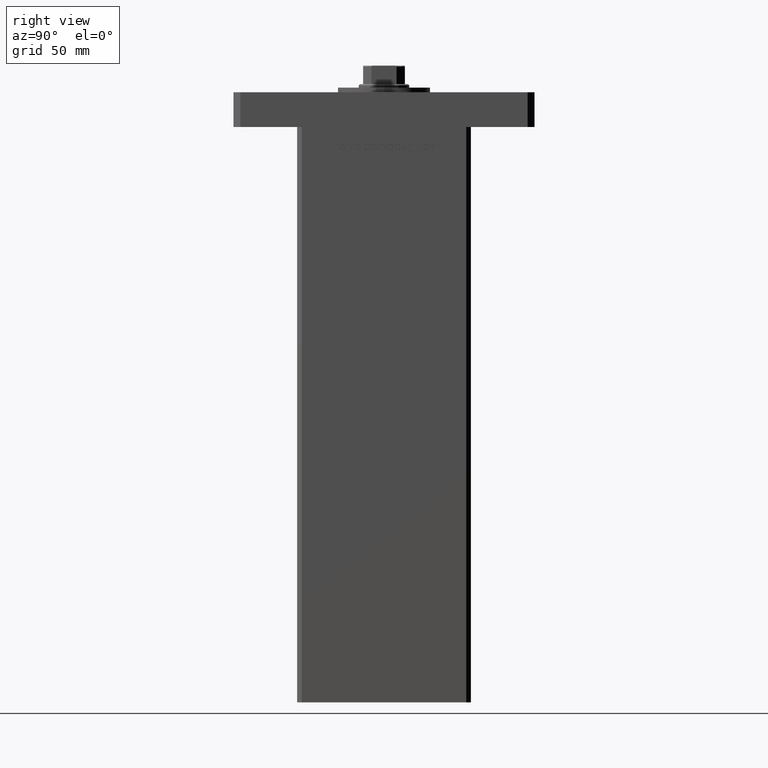
[diagram: clean part render]
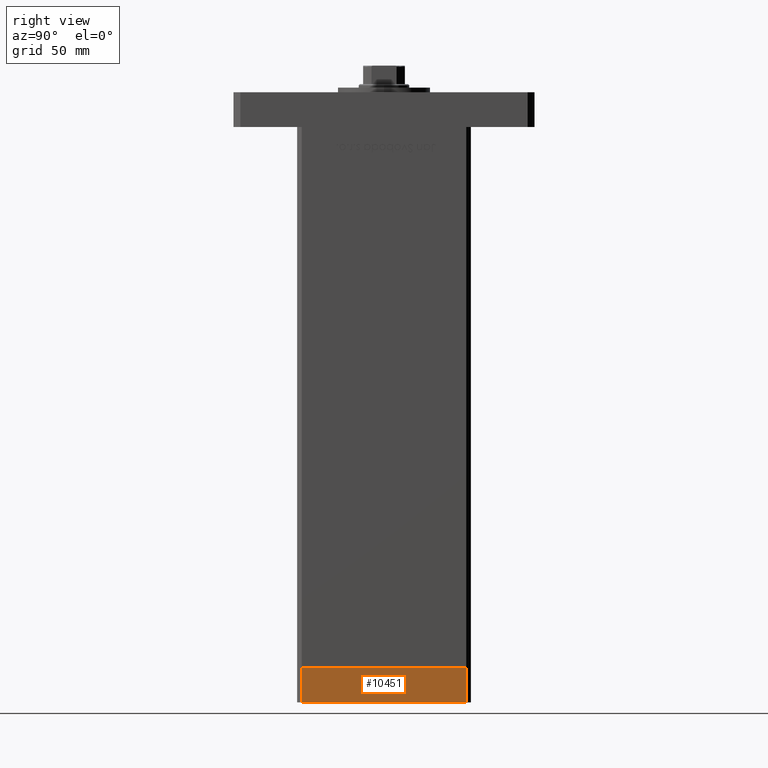
[diagram: same view with one face highlighted and labeled with its STEP entity id]
A machine part, right view. The second image highlights one B-rep face of the part: STEP entity #10451.
In plain terms, the highlighted planar face has unit normal (1, -0, 0).
Its self-contained STEP definition (entity closure, byte-faithful):
#5236 = CARTESIAN_POINT ( 'NONE',  ( -42.50000000000000000, -35.50000000000000711, -15.00000000000000000 ) ) ;
#5639 = CARTESIAN_POINT ( 'NONE',  ( -42.50000000000000711, 35.49999999999997158, 0.000000000000000000 ) ) ;
#5825 = VECTOR ( 'NONE', #18283, 1000.000000000000000 ) ;
#5921 = VERTEX_POINT ( 'NONE', #47193 ) ;
#6834 = DIRECTION ( 'NONE',  ( 9.773090005503140331E-17, -1.000000000000000000, 0.000000000000000000 ) ) ;
#8613 = VERTEX_POINT ( 'NONE', #27088 ) ;
#9858 = ORIENTED_EDGE ( 'NONE', *, *, #21787, .T. ) ;
#10451 = ADVANCED_FACE ( 'NONE', ( #33350 ), #24943, .T. ) ;
#10882 = ORIENTED_EDGE ( 'NONE', *, *, #21329, .F. ) ;
#10909 = LINE ( 'NONE', #43968, #32672 ) ;
#18283 = DIRECTION ( 'NONE',  ( 0.000000000000000000, 0.000000000000000000, 1.000000000000000000 ) ) ;
#18326 = CARTESIAN_POINT ( 'NONE',  ( -42.50000000000000711, 35.49999999999997158, -15.00000000000000000 ) ) ;
#20055 = VECTOR ( 'NONE', #42788, 1000.000000000000000 ) ;
#20865 = DIRECTION ( 'NONE',  ( -1.000000000000000000, -9.773090005503140331E-17, 0.000000000000000000 ) ) ;
#21329 = EDGE_CURVE ( 'NONE', #28173, #8613, #25353, .T. ) ;
#21787 = EDGE_CURVE ( 'NONE', #28173, #33906, #10909, .T. ) ;
#24943 = PLANE ( 'NONE',  #37761 ) ;
#25353 = LINE ( 'NONE', #42164, #5825 ) ;
#25707 = LINE ( 'NONE', #5639, #20055 ) ;
#27088 = CARTESIAN_POINT ( 'NONE',  ( -42.50000000000000711, 35.49999999999997158, 0.000000000000000000 ) ) ;
#28173 = VERTEX_POINT ( 'NONE', #18326 ) ;
#30575 = ORIENTED_EDGE ( 'NONE', *, *, #33093, .F. ) ;
#30672 = CARTESIAN_POINT ( 'NONE',  ( -42.50000000000000000, -35.50000000000000711, -15.00000000000000000 ) ) ;
#32672 = VECTOR ( 'NONE', #6834, 1000.000000000000000 ) ;
#33093 = EDGE_CURVE ( 'NONE', #8613, #5921, #25707, .T. ) ;
#33350 = FACE_OUTER_BOUND ( 'NONE', #36970, .T. ) ;
#33834 = VECTOR ( 'NONE', #43137, 1000.000000000000000 ) ;
#33881 = DIRECTION ( 'NONE',  ( 9.773090005503140331E-17, -1.000000000000000000, 0.000000000000000000 ) ) ;
#33906 = VERTEX_POINT ( 'NONE', #5236 ) ;
#34475 = LINE ( 'NONE', #30672, #33834 ) ;
#35671 = EDGE_CURVE ( 'NONE', #33906, #5921, #34475, .T. ) ;
#36970 = EDGE_LOOP ( 'NONE', ( #30575, #10882, #9858, #41779 ) ) ;
#37761 = AXIS2_PLACEMENT_3D ( 'NONE', #49870, #20865, #33881 ) ;
#41779 = ORIENTED_EDGE ( 'NONE', *, *, #35671, .T. ) ;
#42164 = CARTESIAN_POINT ( 'NONE',  ( -42.50000000000000711, 35.49999999999997158, -15.00000000000000000 ) ) ;
#42788 = DIRECTION ( 'NONE',  ( 9.773090005503140331E-17, -1.000000000000000000, 0.000000000000000000 ) ) ;
#43137 = DIRECTION ( 'NONE',  ( 0.000000000000000000, 0.000000000000000000, 1.000000000000000000 ) ) ;
#43968 = CARTESIAN_POINT ( 'NONE',  ( -42.50000000000000711, 35.49999999999997158, -15.00000000000000000 ) ) ;
#47193 = CARTESIAN_POINT ( 'NONE',  ( -42.50000000000000000, -35.50000000000000711, 0.000000000000000000 ) ) ;
#49870 = CARTESIAN_POINT ( 'NONE',  ( -42.50000000000000711, 35.49999999999997158, -15.00000000000000000 ) ) ;